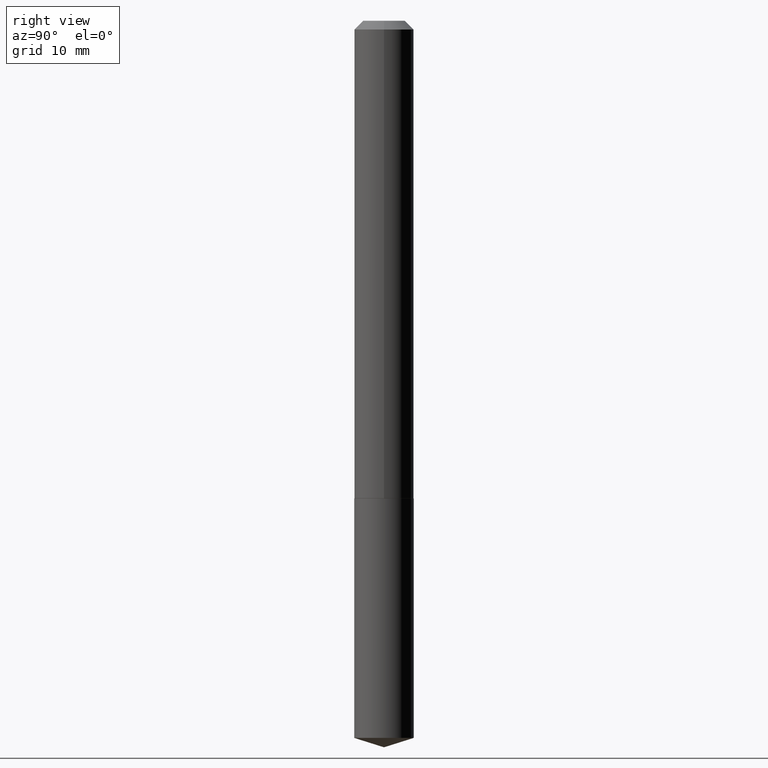
[diagram: clean part render]
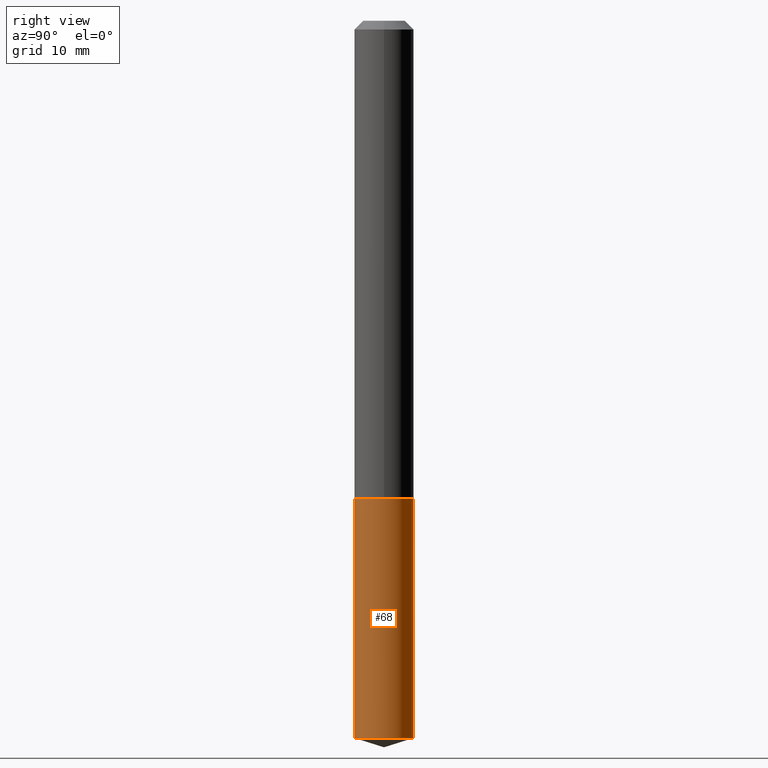
[diagram: same view with one face highlighted and labeled with its STEP entity id]
A machine part, right view. The second image highlights one B-rep face of the part: STEP entity #68.
In plain terms, the highlighted cylindrical surface (edge-blend (fillet) strip) has radius 2.7 mm, axis along (-0, 0, 1).
Its self-contained STEP definition (entity closure, byte-faithful):
#3 = AXIS2_PLACEMENT_3D ( 'NONE', #270, #33, #188 ) ;
#9 = CIRCLE ( 'NONE', #3, 0.1063000000000000056 ) ;
#13 = ORIENTED_EDGE ( 'NONE', *, *, #29, .T. ) ;
#19 = DIRECTION ( 'NONE',  ( -2.445366950737463052E-29, 3.491627201641465727E-15, 1.000000000000000000 ) ) ;
#20 = EDGE_CURVE ( 'NONE', #308, #287, #9, .T. ) ;
#29 = EDGE_CURVE ( 'NONE', #367, #287, #300, .T. ) ;
#33 = DIRECTION ( 'NONE',  ( -2.445366950737463332E-29, 3.491627201641465727E-15, 1.000000000000000000 ) ) ;
#61 = AXIS2_PLACEMENT_3D ( 'NONE', #105, #71, #307 ) ;
#64 = CARTESIAN_POINT ( 'NONE',  ( 7.553069281130281498E-16, 0.1062999999999940520, -1.708600000000000119 ) ) ;
#68 = ADVANCED_FACE ( 'NONE', ( #303 ), #229, .T. ) ;
#71 = DIRECTION ( 'NONE',  ( -2.445366950737463332E-29, 3.491627201641465727E-15, 1.000000000000000000 ) ) ;
#75 = CARTESIAN_POINT ( 'NONE',  ( -7.422889326380084277E-16, -0.1063000000000059592, -1.708599999999999675 ) ) ;
#104 = CARTESIAN_POINT ( 'NONE',  ( 7.553069281130496462E-16, 0.1062999999999910683, -2.564883738742163910 ) ) ;
#105 = CARTESIAN_POINT ( 'NONE',  ( 4.178328002247923804E-29, -5.965545015547398653E-15, -1.708599999999999897 ) ) ;
#123 = CARTESIAN_POINT ( 'NONE',  ( -7.422889326379876215E-16, -0.1063000000000090123, -2.564883738742163022 ) ) ;
#134 = ORIENTED_EDGE ( 'NONE', *, *, #20, .F. ) ;
#144 = CARTESIAN_POINT ( 'NONE',  ( 6.272255957421923181E-29, -8.955368610062791421E-15, -2.564883738742163466 ) ) ;
#148 = CARTESIAN_POINT ( 'NONE',  ( -7.422889326380084277E-16, -0.1063000000000059592, -1.708599999999999675 ) ) ;
#159 = ORIENTED_EDGE ( 'NONE', *, *, #346, .T. ) ;
#163 = DIRECTION ( 'NONE',  ( -2.445366950737463052E-29, 3.491627201641465727E-15, 1.000000000000000000 ) ) ;
#175 = AXIS2_PLACEMENT_3D ( 'NONE', #144, #336, #195 ) ;
#187 = CIRCLE ( 'NONE', #175, 0.1063000000000000056 ) ;
#188 = DIRECTION ( 'NONE',  ( -6.982962677686265922E-15, -1.000000000000000000, 2.569941668545873170E-15 ) ) ;
#195 = DIRECTION ( 'NONE',  ( -6.982962677686265922E-15, -1.000000000000000000, 5.139883337091746339E-15 ) ) ;
#229 = CYLINDRICAL_SURFACE ( 'NONE', #61, 0.1063000000000000056 ) ;
#236 = CARTESIAN_POINT ( 'NONE',  ( 7.553069281130493504E-16, 0.1062999999999940520, -1.708600000000000119 ) ) ;
#239 = VECTOR ( 'NONE', #163, 39.37007874015748143 ) ;
#245 = VERTEX_POINT ( 'NONE', #123 ) ;
#257 = LINE ( 'NONE', #75, #260 ) ;
#260 = VECTOR ( 'NONE', #19, 39.37007874015748143 ) ;
#263 = EDGE_LOOP ( 'NONE', ( #159, #13, #134, #357 ) ) ;
#270 = CARTESIAN_POINT ( 'NONE',  ( 4.178328002247923804E-29, -5.965545015547398653E-15, -1.708599999999999897 ) ) ;
#287 = VERTEX_POINT ( 'NONE', #236 ) ;
#300 = LINE ( 'NONE', #64, #239 ) ;
#303 = FACE_OUTER_BOUND ( 'NONE', #263, .T. ) ;
#307 = DIRECTION ( 'NONE',  ( -6.982962677686265922E-15, -1.000000000000000000, 2.569941668545873170E-15 ) ) ;
#308 = VERTEX_POINT ( 'NONE', #148 ) ;
#332 = EDGE_CURVE ( 'NONE', #245, #308, #257, .T. ) ;
#336 = DIRECTION ( 'NONE',  ( -2.445366950737463332E-29, 3.491627201641465727E-15, 1.000000000000000000 ) ) ;
#346 = EDGE_CURVE ( 'NONE', #245, #367, #187, .T. ) ;
#357 = ORIENTED_EDGE ( 'NONE', *, *, #332, .F. ) ;
#367 = VERTEX_POINT ( 'NONE', #104 ) ;